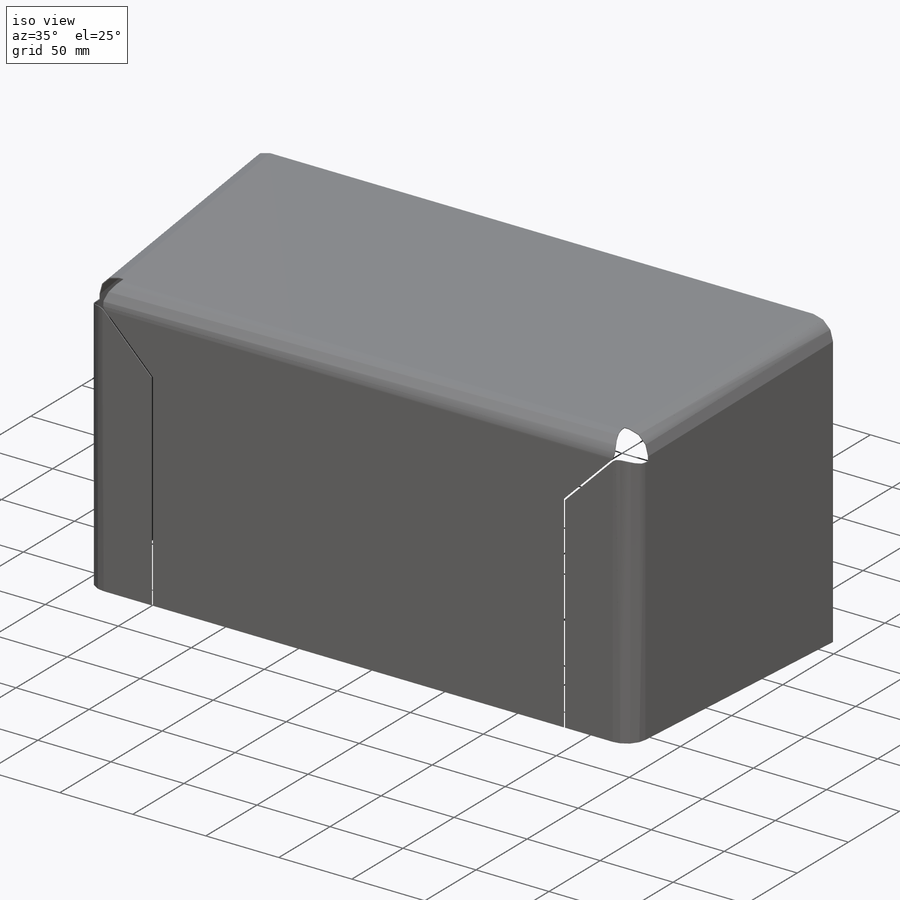
[diagram: iso view]
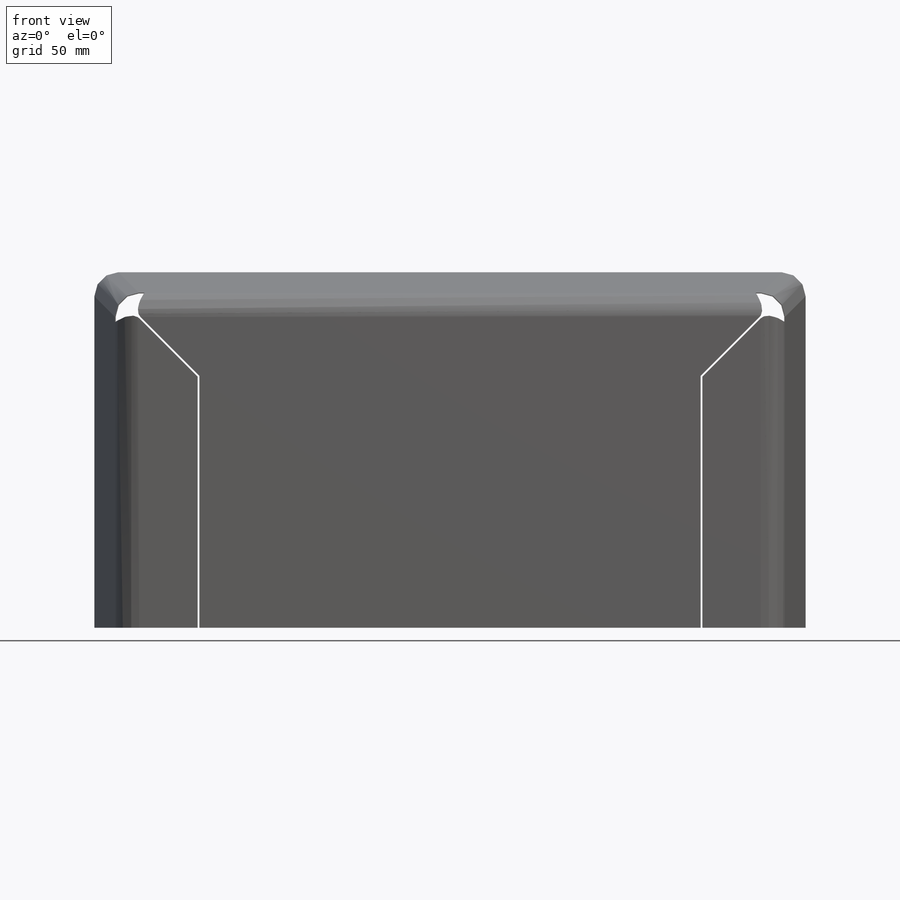
[diagram: front view]
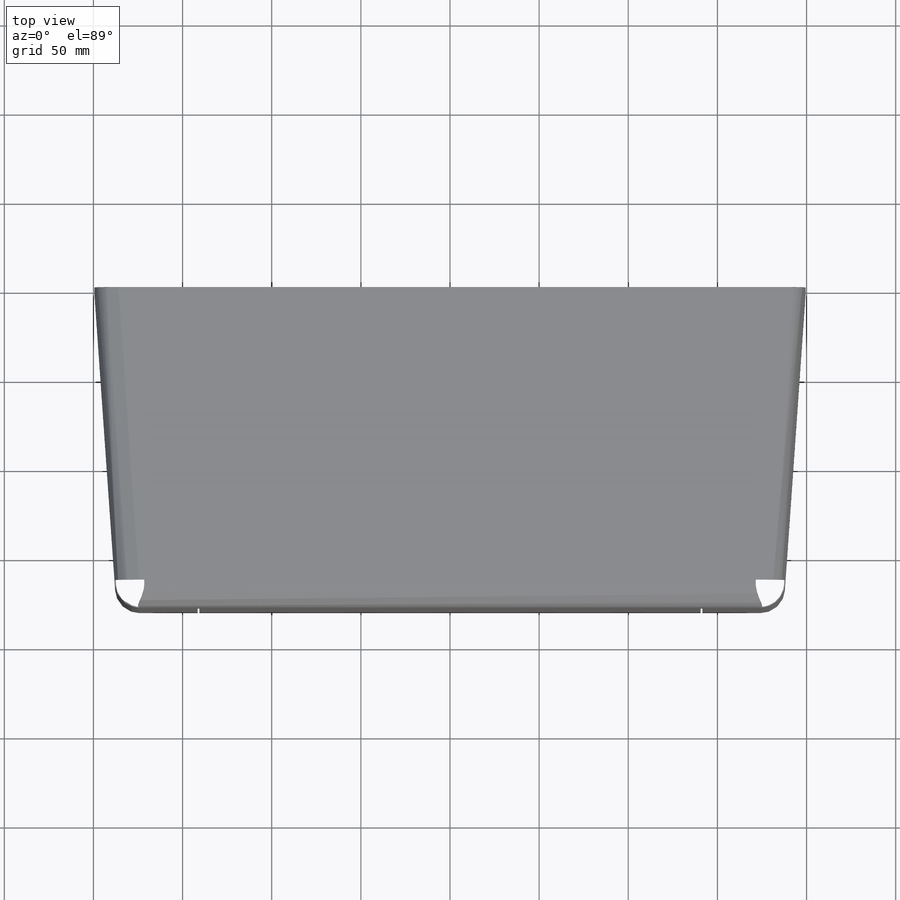
[diagram: top view]
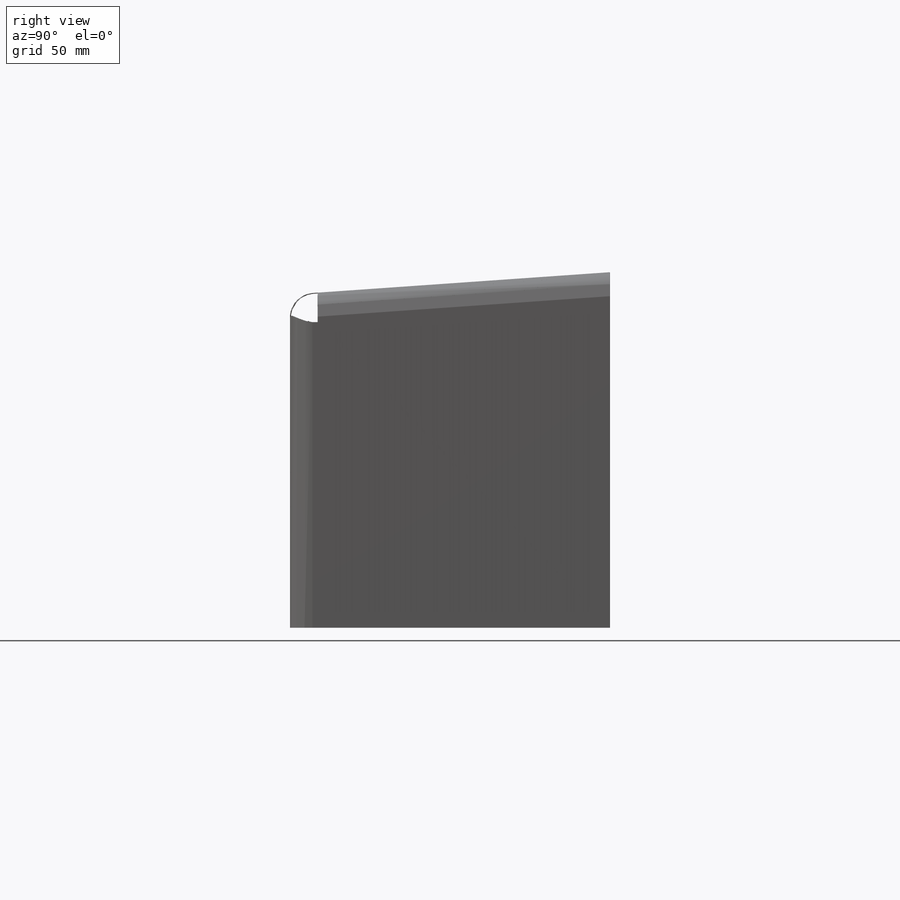
[diagram: right view]
SOLIDWORKS PART (.sldprt)
format: sldprt  version: not decoded by parser v0  size: 400,384 bytes
history: native  units: mm
features: sketch x7, cut_extrude x3, material x1, extrude x1, fillet x1, shell x1, mirror x1, sheet_metal_op x1 + 6 further entries (+11 scaffold rows collapsed)
feature tree (33):
  scaffold x11  (default folders/planes/origin — collapsed)
  material  "Material <not specified>"
  sketch  "Sketch1"  dims[D1=400.0mm D2=400.0mm D3=200.0mm D4=200.0mm]
  extrude  "Extrude1"  Depth=180mm
  fillet  "Fillet1"  Radius=14mm
  shell  "Shell1"  Thickness=1mm
  sketch  "Эскиз1"
  cut_extrude  "Вырез-Вытянуть2"  [1 undecoded]
  sketch  "Sketch2"  dims[D1=0.1mm D2=0.1mm D3=0.1mm D4=0.1mm]
  cut_extrude  "Cut-Extrude1"  [1 undecoded]
  sketch  "Эскиз5"  dims[D5=1.0mm D6=1.0mm D7=5.0mm]
  sketch  "Эскиз6"  dims[D1=30.0mm]
  cut_extrude  "Вырез-Вытянуть3"  Depth=16mm
  mirror  "Зеркальное отражение1"
  sheet_metal_op  "Листовой металл4"  Острый сгиб4=0 Острый сгиб5=0 Острый сгиб6=0 Острый сгиб7=0
  "Развертка2"
  sketch  "Сгиб-Линии2"
  sketch  "Граничная рамка2"
  "Плоское состояние-<Острый сгиб4>1"
  "Плоское состояние-<Острый сгиб5>1"
  "Плоское состояние-<Острый сгиб6>1"
  "Плоское состояние-<Острый сгиб7>1"
  "Преобразование эскиза1"
decode coverage: 9 of 15 modeling features carry decoded parameters; 6 rows unclassified (native names shown)
note: 2 parameter values undecoded
note: suppression state not decoded; provenance and decode notes live in map.json
